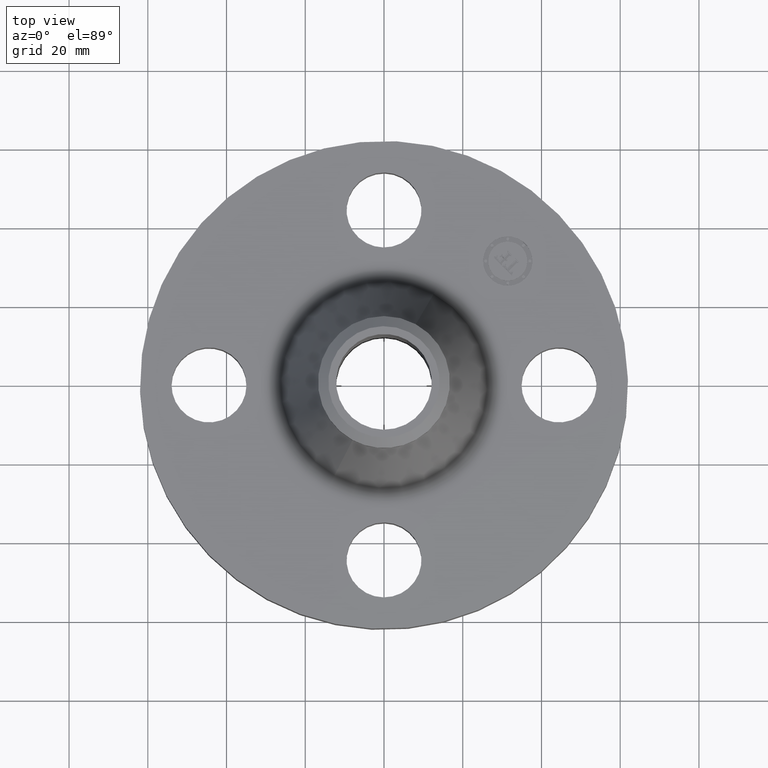
[diagram: clean part render]
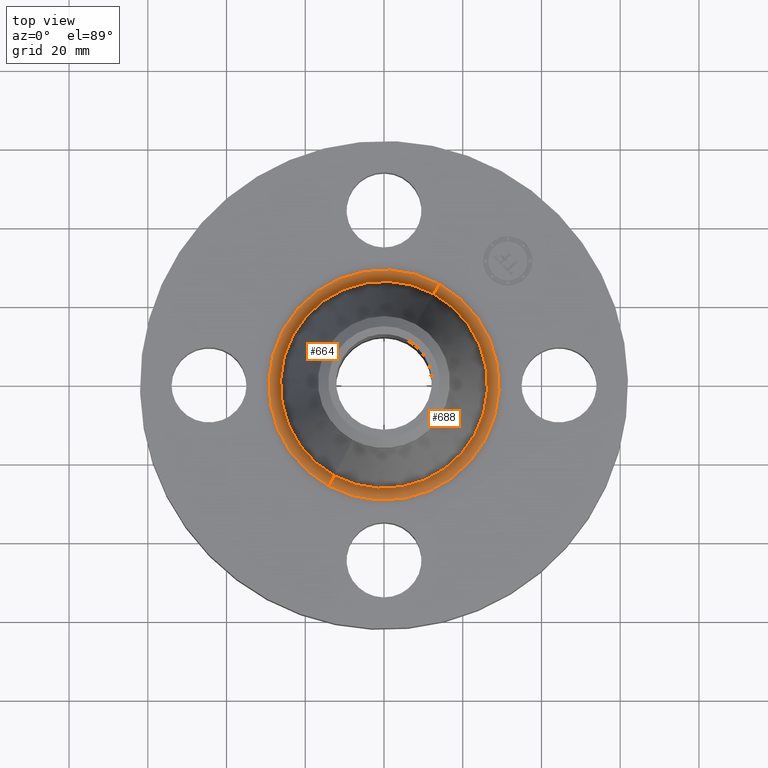
[diagram: same view with one multi-face feature highlighted, each face labeled with its STEP entity id]
A machine part, top view. The highlighted faces form ONE feature: a constant-radius fillet chain: 2 tangent blend faces with common blend radius 3.048 mm. The faces share edges in the B-rep.
Their STEP definitions:
[1] entity #664 (Torus):
#272=AXIS2_PLACEMENT_3D('Circle Axis2P3D',#270,#271,$) ;
#637=AXIS2_PLACEMENT_3D('Torus Axis2P3D',#634,#635,#636) ;
#641=AXIS2_PLACEMENT_3D('Circle Axis2P3D',#639,#640,$) ;
#648=AXIS2_PLACEMENT_3D('Circle Axis2P3D',#646,#647,$) ;
#655=AXIS2_PLACEMENT_3D('Circle Axis2P3D',#653,#654,$) ;
#270=CARTESIAN_POINT('Axis2P3D Location',(0.,1.82133922992E-011,0.690000000003)) ;
#274=CARTESIAN_POINT('Vertex',(-0.551878272917,-1.01020640245,0.690000000003)) ;
#276=CARTESIAN_POINT('Vertex',(0.551878272915,1.01020640245,0.690000000003)) ;
#634=CARTESIAN_POINT('Axis2P3D Location',(0.,0.,0.810000000003)) ;
#639=CARTESIAN_POINT('Axis2P3D Location',(-0.551878272917,-1.01020640245,0.810000000003)) ;
#643=CARTESIAN_POINT('Vertex',(-0.496460113539,-0.908764142152,0.777777407987)) ;
#646=CARTESIAN_POINT('Axis2P3D Location',(0.,0.,0.777777407988)) ;
#650=CARTESIAN_POINT('Vertex',(0.496460113539,0.908764142152,0.777777407988)) ;
#653=CARTESIAN_POINT('Axis2P3D Location',(0.551878272917,1.01020640245,0.810000000003)) ;
#271=DIRECTION('Axis2P3D Direction',(0.,0.,-0.0393700787402)) ;
#635=DIRECTION('Axis2P3D Direction',(0.,0.,-0.0393700787402)) ;
#636=DIRECTION('Axis2P3D XDirection',(-0.0188750212049,-0.0345504945626,0.)) ;
#640=DIRECTION('Axis2P3D Direction',(0.0345504945626,-0.0188750212049,0.)) ;
#647=DIRECTION('Axis2P3D Direction',(-0.,0.,-0.0393700787402)) ;
#654=DIRECTION('Axis2P3D Direction',(-0.0345504945626,0.0188750212049,0.)) ;
#659=ORIENTED_EDGE('',*,*,#278,.F.) ;
#660=ORIENTED_EDGE('',*,*,#645,.T.) ;
#661=ORIENTED_EDGE('',*,*,#652,.T.) ;
#662=ORIENTED_EDGE('',*,*,#657,.F.) ;
#664=ADVANCED_FACE('PartBody',(#663),#638,.F.) ;
#273=CIRCLE('generated circle',#272,1.15112406095) ;
#642=CIRCLE('generated circle',#641,0.12) ;
#649=CIRCLE('generated circle',#648,1.03553122135) ;
#656=CIRCLE('generated circle',#655,0.12) ;
#638=TOROIDAL_SURFACE('homeo Torus',#637,1.15112406094,0.12) ;
#278=EDGE_CURVE('',#275,#277,#273,.T.) ;
#645=EDGE_CURVE('',#275,#644,#642,.T.) ;
#652=EDGE_CURVE('',#644,#651,#649,.T.) ;
#657=EDGE_CURVE('',#277,#651,#656,.T.) ;
#658=EDGE_LOOP('',(#659,#660,#661,#662)) ;
#663=FACE_OUTER_BOUND('',#658,.T.) ;
#275=VERTEX_POINT('',#274) ;
#277=VERTEX_POINT('',#276) ;
#644=VERTEX_POINT('',#643) ;
#651=VERTEX_POINT('',#650) ;
[2] entity #688 (Torus):
#281=AXIS2_PLACEMENT_3D('Circle Axis2P3D',#279,#280,$) ;
#641=AXIS2_PLACEMENT_3D('Circle Axis2P3D',#639,#640,$) ;
#655=AXIS2_PLACEMENT_3D('Circle Axis2P3D',#653,#654,$) ;
#675=AXIS2_PLACEMENT_3D('Torus Axis2P3D',#672,#673,#674) ;
#679=AXIS2_PLACEMENT_3D('Circle Axis2P3D',#677,#678,$) ;
#274=CARTESIAN_POINT('Vertex',(-0.551878272917,-1.01020640245,0.690000000003)) ;
#276=CARTESIAN_POINT('Vertex',(0.551878272915,1.01020640245,0.690000000003)) ;
#279=CARTESIAN_POINT('Axis2P3D Location',(0.,1.82133922992E-011,0.690000000003)) ;
#639=CARTESIAN_POINT('Axis2P3D Location',(-0.551878272917,-1.01020640245,0.810000000003)) ;
#643=CARTESIAN_POINT('Vertex',(-0.496460113539,-0.908764142152,0.777777407987)) ;
#650=CARTESIAN_POINT('Vertex',(0.496460113539,0.908764142152,0.777777407988)) ;
#653=CARTESIAN_POINT('Axis2P3D Location',(0.551878272917,1.01020640245,0.810000000003)) ;
#672=CARTESIAN_POINT('Axis2P3D Location',(0.,0.,0.810000000003)) ;
#677=CARTESIAN_POINT('Axis2P3D Location',(0.,0.,0.777777407988)) ;
#280=DIRECTION('Axis2P3D Direction',(0.,0.,-0.0393700787402)) ;
#640=DIRECTION('Axis2P3D Direction',(0.0345504945626,-0.0188750212049,0.)) ;
#654=DIRECTION('Axis2P3D Direction',(-0.0345504945626,0.0188750212049,0.)) ;
#673=DIRECTION('Axis2P3D Direction',(0.,0.,-0.0393700787402)) ;
#674=DIRECTION('Axis2P3D XDirection',(0.0188750212049,0.0345504945626,0.)) ;
#678=DIRECTION('Axis2P3D Direction',(-0.,0.,-0.0393700787402)) ;
#683=ORIENTED_EDGE('',*,*,#283,.F.) ;
#684=ORIENTED_EDGE('',*,*,#657,.T.) ;
#685=ORIENTED_EDGE('',*,*,#681,.T.) ;
#686=ORIENTED_EDGE('',*,*,#645,.F.) ;
#688=ADVANCED_FACE('PartBody',(#687),#676,.F.) ;
#282=CIRCLE('generated circle',#281,1.15112406095) ;
#642=CIRCLE('generated circle',#641,0.12) ;
#656=CIRCLE('generated circle',#655,0.12) ;
#680=CIRCLE('generated circle',#679,1.03553122135) ;
#676=TOROIDAL_SURFACE('homeo Torus',#675,1.15112406094,0.12) ;
#283=EDGE_CURVE('',#277,#275,#282,.T.) ;
#645=EDGE_CURVE('',#275,#644,#642,.T.) ;
#657=EDGE_CURVE('',#277,#651,#656,.T.) ;
#681=EDGE_CURVE('',#651,#644,#680,.T.) ;
#682=EDGE_LOOP('',(#683,#684,#685,#686)) ;
#687=FACE_OUTER_BOUND('',#682,.T.) ;
#275=VERTEX_POINT('',#274) ;
#277=VERTEX_POINT('',#276) ;
#644=VERTEX_POINT('',#643) ;
#651=VERTEX_POINT('',#650) ;